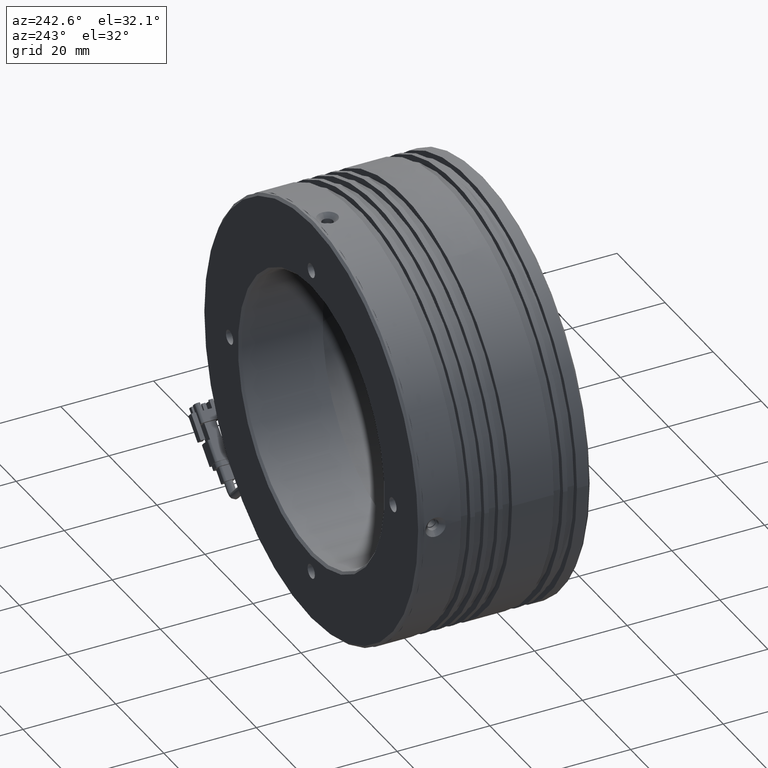
[diagram: clean part render]
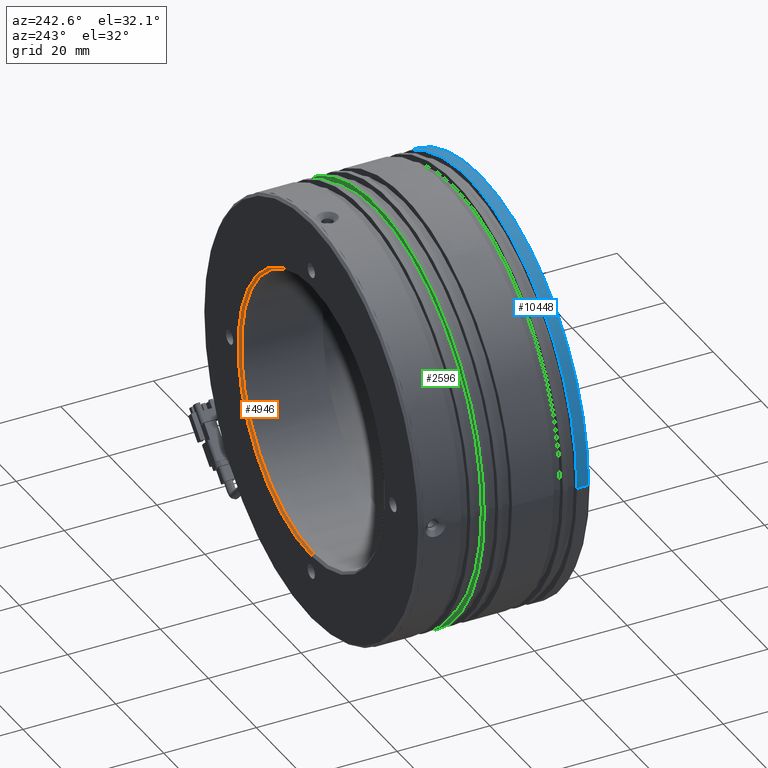
[diagram: same view with three faces highlighted in distinct colors, each labeled with its STEP entity id]
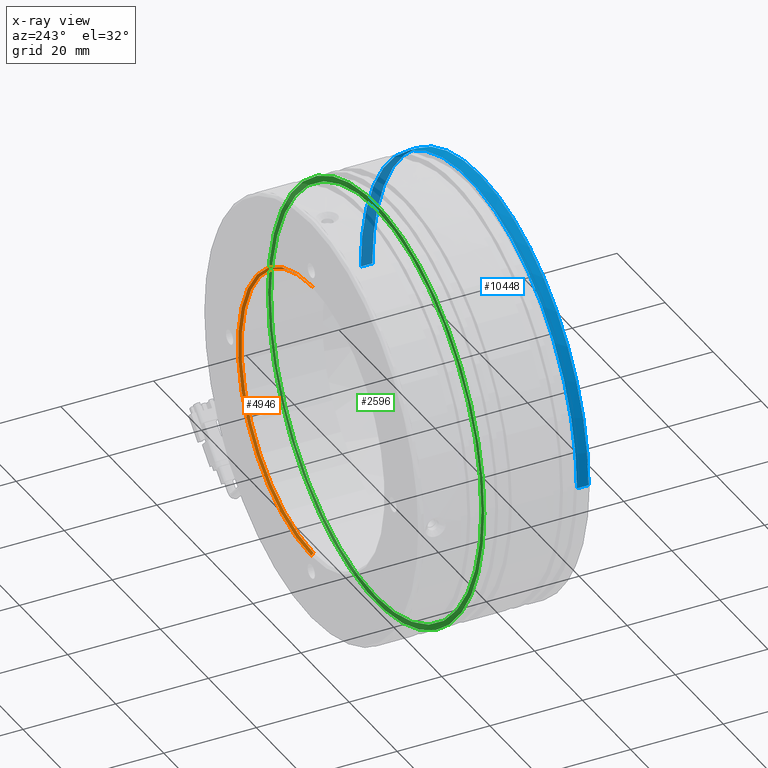
[diagram: x-ray of the same camera — body ghosted, the three highlighted faces saturated]
A machine part, auxiliary view with three faces highlighted in distinct colors.
The next image is the same camera in x-ray (body ghosted, the three faces saturated) — at least one of them is partly hidden behind the body in this view.
Their STEP definitions:

[orange] entity #4946 — the highlighted conical surface has half-angle 45 deg.
#150 = DIRECTION ( 'NONE',  ( 0.0000000000000000000, 1.000000000000000000, 0.0000000000000000000 ) ) ;
#400 = EDGE_CURVE ( 'NONE', #781, #11228, #3712, .T. ) ;
#781 = VERTEX_POINT ( 'NONE', #11632 ) ;
#1099 = ORIENTED_EDGE ( 'NONE', *, *, #7226, .T. ) ;
#1296 = DIRECTION ( 'NONE',  ( 0.0000000000000000000, 1.000000000000000000, 0.0000000000000000000 ) ) ;
#1407 = CARTESIAN_POINT ( 'NONE',  ( -13.35553552304124700, 13.86606337979335500, 30.00000000000000000 ) ) ;
#1450 = ORIENTED_EDGE ( 'NONE', *, *, #400, .F. ) ;
#1713 = AXIS2_PLACEMENT_3D ( 'NONE', #10612, #1296, #5103 ) ;
#1779 = CIRCLE ( 'NONE', #3441, 30.49999999999998600 ) ;
#2201 = EDGE_CURVE ( 'NONE', #5697, #781, #6705, .T. ) ;
#3302 = CARTESIAN_POINT ( 'NONE',  ( -13.35553552304124700, 14.36606337979335500, -30.49999999999998600 ) ) ;
#3441 = AXIS2_PLACEMENT_3D ( 'NONE', #5800, #150, #6741 ) ;
#3615 = CONICAL_SURFACE ( 'NONE', #1713, 30.49999999999998600, 0.7853981633974344000 ) ;
#3712 = LINE ( 'NONE', #3302, #5034 ) ;
#3809 = DIRECTION ( 'NONE',  ( 8.659560562354813300E-017, 0.7071067811865574500, -0.7071067811865376900 ) ) ;
#3924 = DIRECTION ( 'NONE',  ( 0.0000000000000000000, 0.0000000000000000000, 1.000000000000000000 ) ) ;
#3954 = CARTESIAN_POINT ( 'NONE',  ( -13.35553552304125100, 14.36606337979335500, 30.49999999999998600 ) ) ;
#3963 = DIRECTION ( 'NONE',  ( -0.0000000000000000000, 1.000000000000000000, -0.0000000000000000000 ) ) ;
#4000 = CARTESIAN_POINT ( 'NONE',  ( -13.35553552304125100, 13.86606337979335500, 0.0000000000000000000 ) ) ;
#4921 = AXIS2_PLACEMENT_3D ( 'NONE', #4000, #3963, #3924 ) ;
#4946 = ADVANCED_FACE ( 'NONE', ( #11878 ), #3615, .F. ) ;
#5034 = VECTOR ( 'NONE', #3809, 999.9999999999998900 ) ;
#5103 = DIRECTION ( 'NONE',  ( 0.0000000000000000000, 0.0000000000000000000, 1.000000000000000000 ) ) ;
#5426 = CARTESIAN_POINT ( 'NONE',  ( -13.35553552304124700, 14.36606337979335500, -30.49999999999998600 ) ) ;
#5468 = VERTEX_POINT ( 'NONE', #11202 ) ;
#5503 = ORIENTED_EDGE ( 'NONE', *, *, #11381, .T. ) ;
#5697 = VERTEX_POINT ( 'NONE', #1407 ) ;
#5800 = CARTESIAN_POINT ( 'NONE',  ( -13.35553552304125100, 14.36606337979335500, 0.0000000000000000000 ) ) ;
#5803 = DIRECTION ( 'NONE',  ( 0.0000000000000000000, 0.7071067811865574500, 0.7071067811865376900 ) ) ;
#6158 = EDGE_LOOP ( 'NONE', ( #1450, #6679, #1099, #5503 ) ) ;
#6679 = ORIENTED_EDGE ( 'NONE', *, *, #2201, .F. ) ;
#6705 = CIRCLE ( 'NONE', #4921, 30.00000000000000000 ) ;
#6741 = DIRECTION ( 'NONE',  ( 0.0000000000000000000, 0.0000000000000000000, 1.000000000000000000 ) ) ;
#7094 = LINE ( 'NONE', #3954, #9547 ) ;
#7226 = EDGE_CURVE ( 'NONE', #5697, #5468, #7094, .T. ) ;
#9547 = VECTOR ( 'NONE', #5803, 999.9999999999998900 ) ;
#10612 = CARTESIAN_POINT ( 'NONE',  ( -13.35553552304125100, 14.36606337979335500, 0.0000000000000000000 ) ) ;
#11202 = CARTESIAN_POINT ( 'NONE',  ( -13.35553552304125100, 14.36606337979335500, 30.49999999999998600 ) ) ;
#11228 = VERTEX_POINT ( 'NONE', #5426 ) ;
#11381 = EDGE_CURVE ( 'NONE', #5468, #11228, #1779, .T. ) ;
#11632 = CARTESIAN_POINT ( 'NONE',  ( -13.35553552304125100, 13.86606337979335500, -30.00000000000000000 ) ) ;
#11878 = FACE_OUTER_BOUND ( 'NONE', #6158, .T. ) ;

[blue] entity #10448 — the highlighted cylindrical surface (partial cylindrical patch) has radius 45 mm, axis along (-0, -1, 0).
#85 = EDGE_CURVE ( 'NONE', #9344, #2384, #9069, .T. ) ;
#485 = CIRCLE ( 'NONE', #9388, 45.00000000000000000 ) ;
#560 = AXIS2_PLACEMENT_3D ( 'NONE', #6997, #9821, #7993 ) ;
#851 = ORIENTED_EDGE ( 'NONE', *, *, #3672, .T. ) ;
#1495 = CARTESIAN_POINT ( 'NONE',  ( -13.35553552304124700, -22.13393662020660800, 1.271920936629652900E-014 ) ) ;
#1682 = CARTESIAN_POINT ( 'NONE',  ( -58.35553552304124700, -50.09547878573967900, -4.519091264393314100E-013 ) ) ;
#1846 = CARTESIAN_POINT ( 'NONE',  ( -13.35553552304124700, -19.63393662020662600, 1.271920936629652900E-014 ) ) ;
#2004 = LINE ( 'NONE', #1682, #4216 ) ;
#2256 = CARTESIAN_POINT ( 'NONE',  ( 31.64446447695874900, -22.13393662020660800, 4.718366345757614500E-013 ) ) ;
#2384 = VERTEX_POINT ( 'NONE', #8372 ) ;
#2409 = EDGE_CURVE ( 'NONE', #8354, #9344, #4666, .T. ) ;
#2449 = DIRECTION ( 'NONE',  ( 1.000000000000000000, 7.709882115452475700E-017, 1.032507412901395400E-014 ) ) ;
#2455 = VECTOR ( 'NONE', #8334, 1000.000000000000000 ) ;
#2788 = DIRECTION ( 'NONE',  ( -1.000000000000000000, 0.0000000000000000000, -1.032507412901395400E-014 ) ) ;
#2883 = CYLINDRICAL_SURFACE ( 'NONE', #560, 45.00000000000000000 ) ;
#3007 = CARTESIAN_POINT ( 'NONE',  ( -58.35553552304124700, -19.63393662020662600, -4.519091264393314100E-013 ) ) ;
#3672 = EDGE_CURVE ( 'NONE', #4122, #11247, #2004, .T. ) ;
#4122 = VERTEX_POINT ( 'NONE', #3007 ) ;
#4216 = VECTOR ( 'NONE', #7270, 1000.000000000000000 ) ;
#4437 = ORIENTED_EDGE ( 'NONE', *, *, #5182, .F. ) ;
#4666 = LINE ( 'NONE', #9395, #2455 ) ;
#5182 = EDGE_CURVE ( 'NONE', #2384, #11247, #485, .T. ) ;
#5555 = CARTESIAN_POINT ( 'NONE',  ( -58.35553552304124700, -22.13393662020660800, -4.519091264393314100E-013 ) ) ;
#6823 = CIRCLE ( 'NONE', #8708, 45.00000000000000000 ) ;
#6997 = CARTESIAN_POINT ( 'NONE',  ( -13.35553552304124700, -50.09547878573967900, 1.271920936629652900E-014 ) ) ;
#7270 = DIRECTION ( 'NONE',  ( -0.0000000000000000000, -1.000000000000000000, 0.0000000000000000000 ) ) ;
#7993 = DIRECTION ( 'NONE',  ( -1.000000000000000000, 0.0000000000000000000, -1.032507412901395400E-014 ) ) ;
#8020 = DIRECTION ( 'NONE',  ( -0.0000000000000000000, -1.000000000000000000, -0.0000000000000000000 ) ) ;
#8160 = ORIENTED_EDGE ( 'NONE', *, *, #2409, .F. ) ;
#8217 = ORIENTED_EDGE ( 'NONE', *, *, #85, .F. ) ;
#8334 = DIRECTION ( 'NONE',  ( -0.0000000000000000000, -1.000000000000000000, 0.0000000000000000000 ) ) ;
#8345 = DIRECTION ( 'NONE',  ( -0.0000000000000000000, -1.000000000000000000, 0.0000000000000000000 ) ) ;
#8354 = VERTEX_POINT ( 'NONE', #8473 ) ;
#8355 = EDGE_LOOP ( 'NONE', ( #8160, #9903, #851, #4437, #8217 ) ) ;
#8372 = CARTESIAN_POINT ( 'NONE',  ( -13.35553552304171300, -22.13393662020660800, 45.00000000000000700 ) ) ;
#8473 = CARTESIAN_POINT ( 'NONE',  ( 31.64446447695874900, -19.63393662020662600, 4.718366345757614500E-013 ) ) ;
#8674 = FACE_OUTER_BOUND ( 'NONE', #8355, .T. ) ;
#8708 = AXIS2_PLACEMENT_3D ( 'NONE', #1846, #8345, #2788 ) ;
#9013 = AXIS2_PLACEMENT_3D ( 'NONE', #11943, #11991, #12034 ) ;
#9069 = CIRCLE ( 'NONE', #9013, 45.00000000000000000 ) ;
#9344 = VERTEX_POINT ( 'NONE', #2256 ) ;
#9388 = AXIS2_PLACEMENT_3D ( 'NONE', #1495, #8020, #2449 ) ;
#9395 = CARTESIAN_POINT ( 'NONE',  ( 31.64446447695874900, -50.09547878573967900, 4.718366345757614500E-013 ) ) ;
#9821 = DIRECTION ( 'NONE',  ( -0.0000000000000000000, -1.000000000000000000, 0.0000000000000000000 ) ) ;
#9903 = ORIENTED_EDGE ( 'NONE', *, *, #10756, .T. ) ;
#10448 = ADVANCED_FACE ( 'NONE', ( #8674 ), #2883, .T. ) ;
#10756 = EDGE_CURVE ( 'NONE', #8354, #4122, #6823, .T. ) ;
#11247 = VERTEX_POINT ( 'NONE', #5555 ) ;
#11943 = CARTESIAN_POINT ( 'NONE',  ( -13.35553552304124700, -22.13393662020660800, 1.271920936629652900E-014 ) ) ;
#11991 = DIRECTION ( 'NONE',  ( -0.0000000000000000000, -1.000000000000000000, -0.0000000000000000000 ) ) ;
#12034 = DIRECTION ( 'NONE',  ( 1.000000000000000000, 7.709882115452475700E-017, 1.032507412901395400E-014 ) ) ;

[green] entity #2596 — the highlighted planar face has unit normal (0, -1, -0).
#208 = CARTESIAN_POINT ( 'NONE',  ( 31.64446447695870600, 0.3660633797933632300, 4.718366345757608500E-013 ) ) ;
#544 = AXIS2_PLACEMENT_3D ( 'NONE', #3350, #9845, #4300 ) ;
#573 = EDGE_LOOP ( 'NONE', ( #11257, #4021 ) ) ;
#748 = DIRECTION ( 'NONE',  ( -1.000000000000000000, 0.0000000000000000000, -1.032507412901395400E-014 ) ) ;
#914 = DIRECTION ( 'NONE',  ( -1.000000000000000000, 0.0000000000000000000, -1.032507412901395300E-014 ) ) ;
#958 = EDGE_CURVE ( 'NONE', #9063, #2500, #9912, .T. ) ;
#1391 = DIRECTION ( 'NONE',  ( 0.0000000000000000000, 1.000000000000000000, -0.0000000000000000000 ) ) ;
#1842 = DIRECTION ( 'NONE',  ( -0.0000000000000000000, -1.000000000000000000, 0.0000000000000000000 ) ) ;
#2014 = FACE_OUTER_BOUND ( 'NONE', #3681, .T. ) ;
#2181 = CIRCLE ( 'NONE', #544, 44.99999999999994300 ) ;
#2223 = CARTESIAN_POINT ( 'NONE',  ( -13.35553552304124700, 0.3660633797933632300, 1.271920936629652900E-014 ) ) ;
#2306 = CIRCLE ( 'NONE', #8821, 43.79999999999996200 ) ;
#2399 = CARTESIAN_POINT ( 'NONE',  ( -13.35553552304170000, 0.3660633797933632300, 43.79999999999997600 ) ) ;
#2500 = VERTEX_POINT ( 'NONE', #208 ) ;
#2596 = ADVANCED_FACE ( 'NONE', ( #9427, #2014 ), #5538, .F. ) ;
#2604 = DIRECTION ( 'NONE',  ( -1.000000000000000000, 0.0000000000000000000, -1.032507412901395400E-014 ) ) ;
#2689 = DIRECTION ( 'NONE',  ( 0.0000000000000000000, -1.000000000000000000, -0.0000000000000000000 ) ) ;
#2947 = VERTEX_POINT ( 'NONE', #5962 ) ;
#3350 = CARTESIAN_POINT ( 'NONE',  ( -13.35553552304124700, 0.3660633797933632300, 1.271920936629652900E-014 ) ) ;
#3681 = EDGE_LOOP ( 'NONE', ( #6155, #3813 ) ) ;
#3813 = ORIENTED_EDGE ( 'NONE', *, *, #9433, .F. ) ;
#3822 = AXIS2_PLACEMENT_3D ( 'NONE', #2399, #2689, #2604 ) ;
#3869 = EDGE_CURVE ( 'NONE', #6494, #2947, #2306, .T. ) ;
#4021 = ORIENTED_EDGE ( 'NONE', *, *, #6472, .F. ) ;
#4300 = DIRECTION ( 'NONE',  ( -1.000000000000000000, 0.0000000000000000000, -1.032507412901395300E-014 ) ) ;
#4520 = CARTESIAN_POINT ( 'NONE',  ( -57.15553552304121600, 0.3660633797933632300, -4.395190374845142700E-013 ) ) ;
#5538 = PLANE ( 'NONE',  #3822 ) ;
#5962 = CARTESIAN_POINT ( 'NONE',  ( 30.44446447695871800, 0.3660633797933632300, 4.595935032368420100E-013 ) ) ;
#6155 = ORIENTED_EDGE ( 'NONE', *, *, #958, .F. ) ;
#6382 = DIRECTION ( 'NONE',  ( 0.0000000000000000000, 1.000000000000000000, -0.0000000000000000000 ) ) ;
#6472 = EDGE_CURVE ( 'NONE', #2947, #6494, #8059, .T. ) ;
#6494 = VERTEX_POINT ( 'NONE', #4520 ) ;
#6995 = CARTESIAN_POINT ( 'NONE',  ( -13.35553552304124700, 0.3660633797933632300, 1.271920936629652900E-014 ) ) ;
#7914 = DIRECTION ( 'NONE',  ( -1.000000000000000000, 0.0000000000000000000, -1.032507412901395400E-014 ) ) ;
#8059 = CIRCLE ( 'NONE', #11852, 43.79999999999996200 ) ;
#8263 = CARTESIAN_POINT ( 'NONE',  ( -58.35553552304119100, 0.3660633797933632300, -4.519091264393308100E-013 ) ) ;
#8821 = AXIS2_PLACEMENT_3D ( 'NONE', #6995, #1391, #7914 ) ;
#9063 = VERTEX_POINT ( 'NONE', #8263 ) ;
#9427 = FACE_BOUND ( 'NONE', #573, .T. ) ;
#9433 = EDGE_CURVE ( 'NONE', #2500, #9063, #2181, .T. ) ;
#9845 = DIRECTION ( 'NONE',  ( -0.0000000000000000000, -1.000000000000000000, 0.0000000000000000000 ) ) ;
#9912 = CIRCLE ( 'NONE', #10748, 44.99999999999994300 ) ;
#10748 = AXIS2_PLACEMENT_3D ( 'NONE', #2223, #1842, #914 ) ;
#11257 = ORIENTED_EDGE ( 'NONE', *, *, #3869, .F. ) ;
#11852 = AXIS2_PLACEMENT_3D ( 'NONE', #11929, #6382, #748 ) ;
#11929 = CARTESIAN_POINT ( 'NONE',  ( -13.35553552304124700, 0.3660633797933632300, 1.271920936629652900E-014 ) ) ;